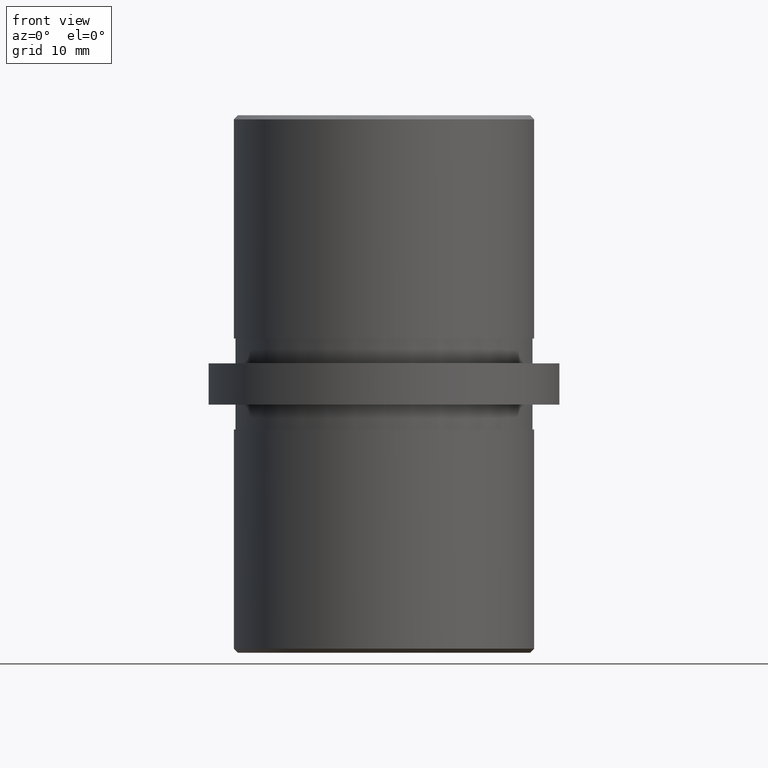
[diagram: clean part render]
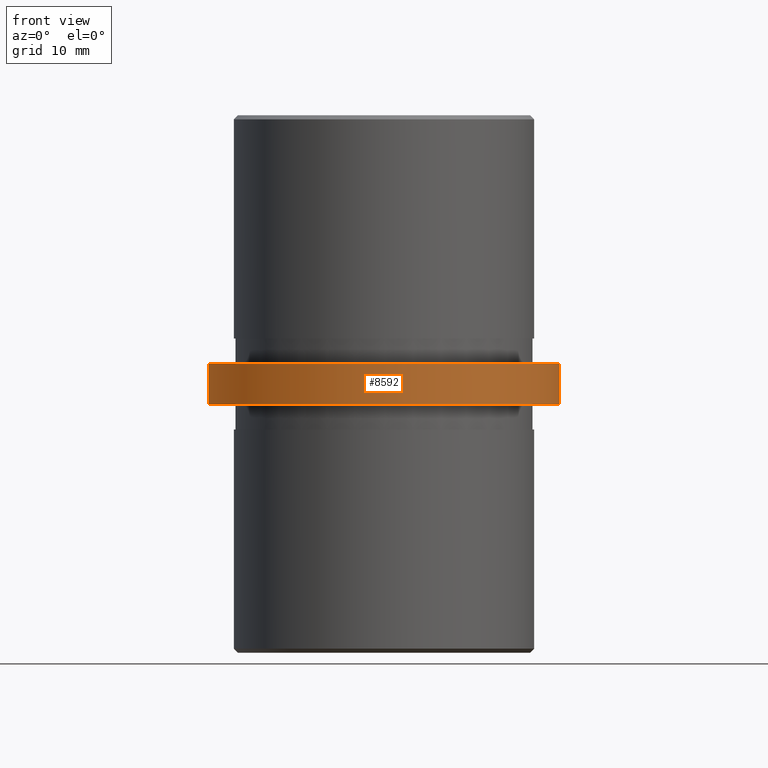
[diagram: same view with one face highlighted and labeled with its STEP entity id]
A machine part, front view. The second image highlights one B-rep face of the part: STEP entity #8592.
In plain terms, the highlighted cylindrical surface (partial cylindrical patch) has radius 21.2 mm, axis along (-0, -0, -1).
Its self-contained STEP definition (entity closure, byte-faithful):
#951 = CIRCLE ( 'NONE', #5722, 21.19999999999999900 ) ;
#2020 = DIRECTION ( 'NONE',  ( 0.0000000000000000000, 0.0000000000000000000, 1.000000000000000000 ) ) ;
#3004 = ORIENTED_EDGE ( 'NONE', *, *, #8295, .T. ) ;
#3076 = ORIENTED_EDGE ( 'NONE', *, *, #14283, .T. ) ;
#3160 = AXIS2_PLACEMENT_3D ( 'NONE', #20976, #17812, #9501 ) ;
#4969 = DIRECTION ( 'NONE',  ( -0.0000000000000000000, -0.0000000000000000000, 1.000000000000000000 ) ) ;
#5722 = AXIS2_PLACEMENT_3D ( 'NONE', #16906, #4969, #6830 ) ;
#5744 = DIRECTION ( 'NONE',  ( -0.0000000000000000000, -0.0000000000000000000, -1.000000000000000000 ) ) ;
#5750 = VECTOR ( 'NONE', #21813, 1000.000000000000000 ) ;
#5804 = EDGE_CURVE ( 'NONE', #12211, #21073, #8674, .T. ) ;
#6830 = DIRECTION ( 'NONE',  ( 1.000000000000000000, 0.0000000000000000000, 0.0000000000000000000 ) ) ;
#7279 = CARTESIAN_POINT ( 'NONE',  ( 21.19999999999999900, 2.596251214192388800E-015, 2.500000000000000000 ) ) ;
#7318 = LINE ( 'NONE', #18556, #5750 ) ;
#8295 = EDGE_CURVE ( 'NONE', #12211, #21555, #7318, .T. ) ;
#8592 = ADVANCED_FACE ( 'NONE', ( #18854 ), #20734, .T. ) ;
#8674 = CIRCLE ( 'NONE', #18429, 21.19999999999999900 ) ;
#9003 = VERTEX_POINT ( 'NONE', #16408 ) ;
#9501 = DIRECTION ( 'NONE',  ( -1.000000000000000000, 0.0000000000000000000, 0.0000000000000000000 ) ) ;
#10453 = EDGE_LOOP ( 'NONE', ( #10470, #15692, #3004, #3076 ) ) ;
#10470 = ORIENTED_EDGE ( 'NONE', *, *, #19285, .F. ) ;
#10499 = CARTESIAN_POINT ( 'NONE',  ( -21.19999999999999900, 0.0000000000000000000, -2.500000000000000000 ) ) ;
#12211 = VERTEX_POINT ( 'NONE', #13653 ) ;
#13653 = CARTESIAN_POINT ( 'NONE',  ( -21.19999999999999900, 0.0000000000000000000, 2.500000000000000000 ) ) ;
#14010 = VECTOR ( 'NONE', #5744, 1000.000000000000000 ) ;
#14256 = LINE ( 'NONE', #7279, #14010 ) ;
#14283 = EDGE_CURVE ( 'NONE', #21555, #9003, #951, .T. ) ;
#15692 = ORIENTED_EDGE ( 'NONE', *, *, #5804, .F. ) ;
#16408 = CARTESIAN_POINT ( 'NONE',  ( 21.19999999999999900, 2.596251214192388800E-015, -2.500000000000000000 ) ) ;
#16906 = CARTESIAN_POINT ( 'NONE',  ( 0.0000000000000000000, 0.0000000000000000000, -2.500000000000000000 ) ) ;
#17068 = CARTESIAN_POINT ( 'NONE',  ( 0.0000000000000000000, 0.0000000000000000000, 2.500000000000000000 ) ) ;
#17136 = DIRECTION ( 'NONE',  ( 1.000000000000000000, 0.0000000000000000000, 0.0000000000000000000 ) ) ;
#17812 = DIRECTION ( 'NONE',  ( -0.0000000000000000000, -0.0000000000000000000, -1.000000000000000000 ) ) ;
#18429 = AXIS2_PLACEMENT_3D ( 'NONE', #17068, #2020, #17136 ) ;
#18556 = CARTESIAN_POINT ( 'NONE',  ( -21.19999999999999900, 0.0000000000000000000, 2.500000000000000000 ) ) ;
#18854 = FACE_OUTER_BOUND ( 'NONE', #10453, .T. ) ;
#19285 = EDGE_CURVE ( 'NONE', #21073, #9003, #14256, .T. ) ;
#20734 = CYLINDRICAL_SURFACE ( 'NONE', #3160, 21.19999999999999900 ) ;
#20976 = CARTESIAN_POINT ( 'NONE',  ( 0.0000000000000000000, 0.0000000000000000000, 2.500000000000000000 ) ) ;
#21073 = VERTEX_POINT ( 'NONE', #21385 ) ;
#21385 = CARTESIAN_POINT ( 'NONE',  ( 21.19999999999999900, 2.596251214192388800E-015, 2.500000000000000000 ) ) ;
#21555 = VERTEX_POINT ( 'NONE', #10499 ) ;
#21813 = DIRECTION ( 'NONE',  ( -0.0000000000000000000, -0.0000000000000000000, -1.000000000000000000 ) ) ;